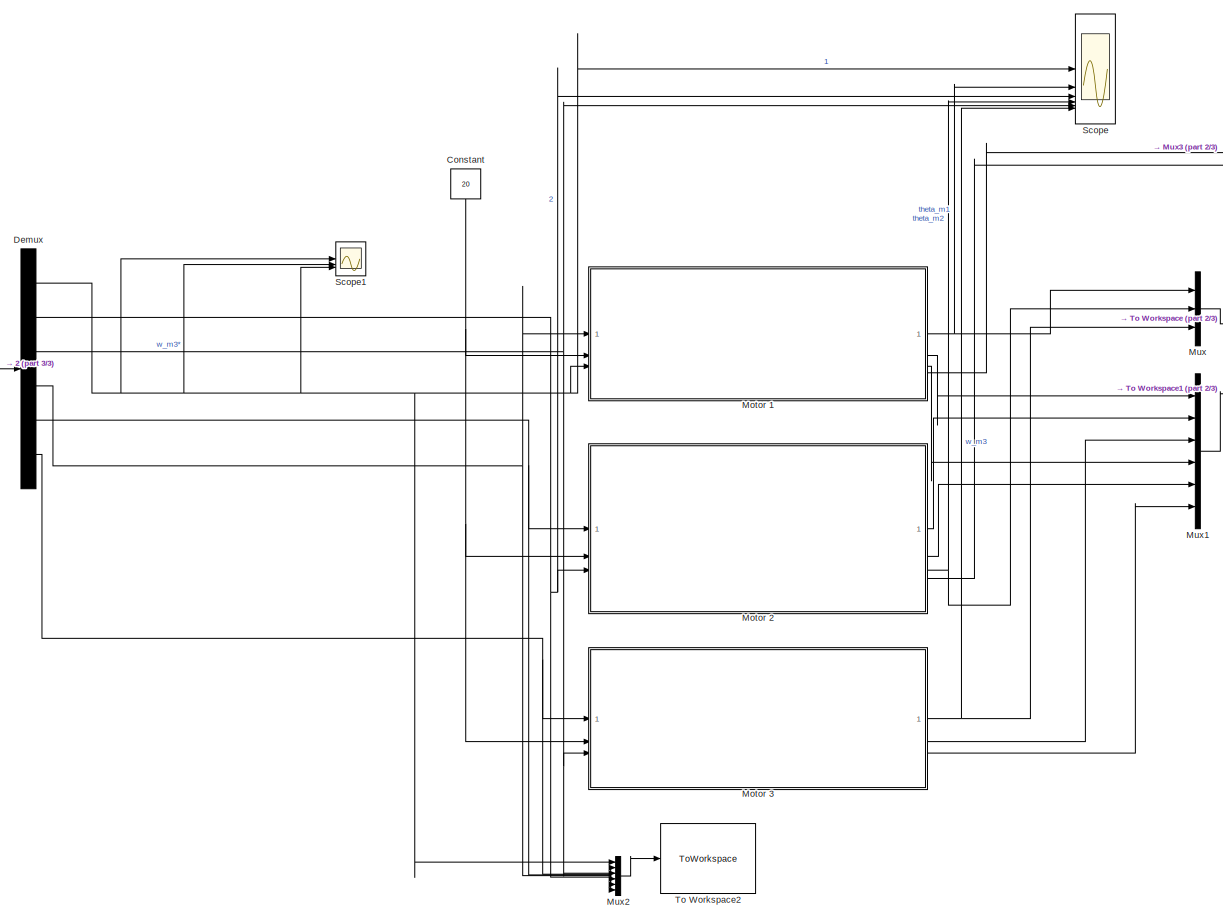
[diagram: root canvas - part 1/3, most of the canvas]
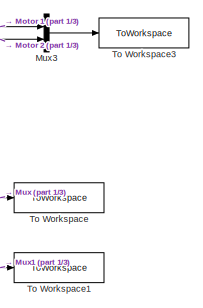
[diagram: root canvas - part 2/3, top right region]
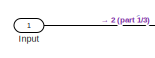
[diagram: root canvas - part 3/3, middle left region]
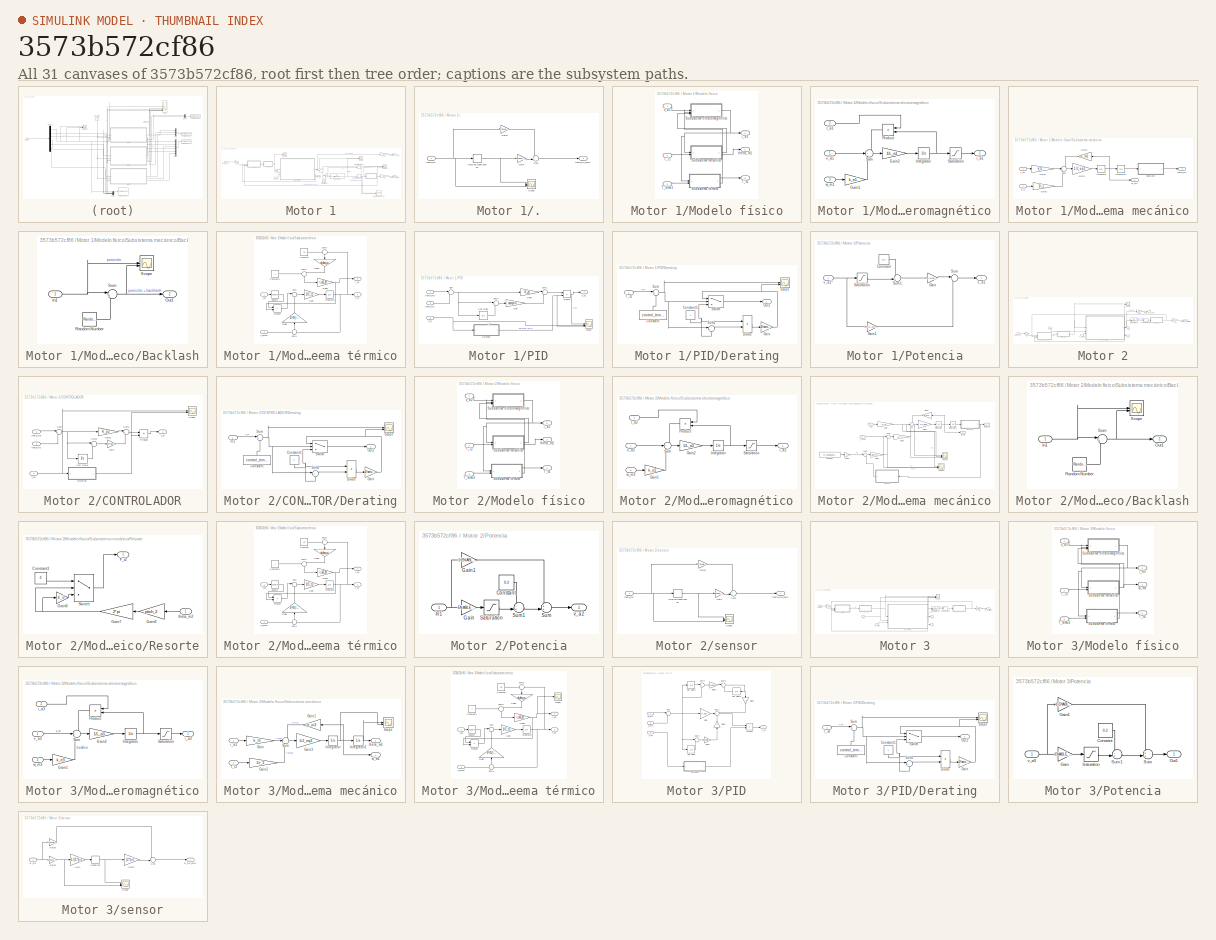
[diagram: thumbnail index - all 31 canvases of the model, root first then tree order]
MODEL slx_3573b572cf86
KIND model
CONFIG AbsTol = auto
CONFIG EnableMultiTasking = off
CONFIG FixedStep = auto
CONFIG MaxStep = sim_max_step
CONFIG MinStep = auto
CONFIG RelTol = 1e-3
CONFIG SampleTimeConstraint = Unconstrained
CONFIG SolverName = ode15s
CONFIG StartTime = 0.0
CONFIG StopTime = sim_end_time
BLOCK [Constant] Constant
  NameLocation = left
  Value = 20
BLOCK [Demux] Demux
  Outputs = 6
BLOCK [Inport] Input
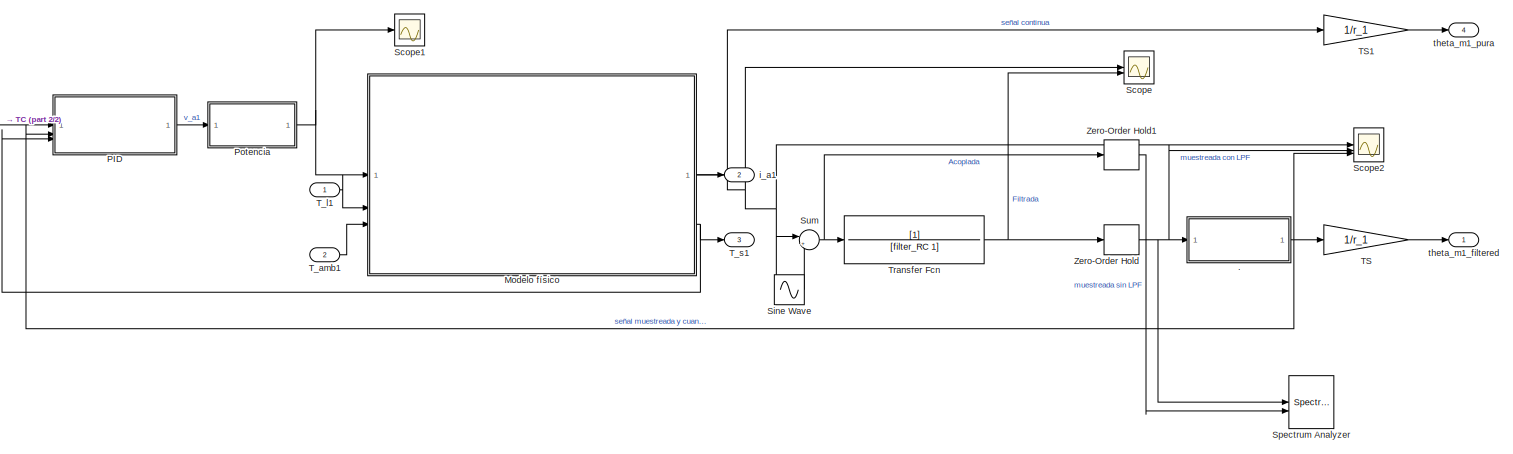
[diagram: Motor 1 - part 1/2, most of the canvas]
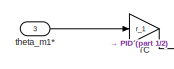
[diagram: Motor 1 - part 2/2, top left region]
BLOCK [SubSystem] Motor 1
BLOCK [SubSystem] Motor 1/.
BLOCK [Gain] Motor 1/./Gain
  Gain = ENABLE_SENSORS
BLOCK [Gain] Motor 1/./Gain1
  Gain = 1-ENABLE_SENSORS
BLOCK [Scope] Motor 1/./Scope
  Floating = off
  NumInputPorts = 2
  ScopeSpecificationString = Simulink.scopes.TimeScopeBlockCfg('CurrentConfiguration', extmgr.ConfigurationSet(extmgr.Configuration('Core','General UI',true),extmgr.Configuration('Core','Source UI',true),extmgr.Configuration('Sources','WiredSimulink',true,'DataLoggingVariableName','ScopeData1'),extmgr.Configuration('Visuals','Time Domain',true,'SerializedDisplays',{struct('MinYLimReal','0.01465','MaxYLimReal','0.02139','YLabe...<+1483ch>
BLOCK [Sum] Motor 1/./Sum
  Inputs = ++|
BLOCK [Quantizer] Motor 1/./ruido de cuantización
  QuantizationInterval = 360/enc_ppr_1*(pi/180)
BLOCK [Inport] Motor 1/./theta_m1
BLOCK [Outport] Motor 1/./theta_m1_noisy
BLOCK [SubSystem] Motor 1/Modelo físico
BLOCK [SubSystem] Motor 1/Modelo físico/Subsistema electromagnético
BLOCK [Gain] Motor 1/Modelo físico/Subsistema electromagnético/Gain1
  Gain = k_e1
BLOCK [Gain] Motor 1/Modelo físico/Subsistema electromagnético/Gain2
  Gain = 1/L_a1
BLOCK [Integrator] Motor 1/Modelo físico/Subsistema electromagnético/Integrator
BLOCK [Product] Motor 1/Modelo físico/Subsistema electromagnético/Product
  NameLocation = top
BLOCK [Saturate] Motor 1/Modelo físico/Subsistema electromagnético/Saturation
  LowerLimit = -max_current
  UpperLimit = max_current
BLOCK [Sum] Motor 1/Modelo físico/Subsistema electromagnético/Sum
  Inputs = -+-
  OutMax = [1]
  OutMin = [1]
BLOCK [Outport] Motor 1/Modelo físico/Subsistema electromagnético/i_a1
BLOCK [Inport] Motor 1/Modelo físico/Subsistema electromagnético/r_a1
  Port = 2
BLOCK [Inport] Motor 1/Modelo físico/Subsistema electromagnético/v_a1
BLOCK [Inport] Motor 1/Modelo físico/Subsistema electromagnético/w_m1
  Port = 3
BLOCK [SubSystem] Motor 1/Modelo físico/Subsistema mecánico
BLOCK [SubSystem] Motor 1/Modelo físico/Subsistema mecánico/Backlash
BLOCK [Inport] Motor 1/Modelo físico/Subsistema mecánico/Backlash/In1
BLOCK [Outport] Motor 1/Modelo físico/Subsistema mecánico/Backlash/Out1
BLOCK [RandomNumber] Motor 1/Modelo físico/Subsistema mecánico/Backlash/Random Number
  SampleTime = 0.1
  Variance = sigma2_backlash
BLOCK [Scope] Motor 1/Modelo físico/Subsistema mecánico/Backlash/Scope
  Floating = off
  NumInputPorts = 2
  ScopeSpecificationString = Simulink.scopes.TimeScopeBlockCfg('CurrentConfiguration', extmgr.ConfigurationSet(extmgr.Configuration('Core','General UI',true),extmgr.Configuration('Core','Source UI',true),extmgr.Configuration('Sources','WiredSimulink',true,'DataLoggingVariableName','ScopeData1'),extmgr.Configuration('Visuals','Time Domain',true,'SerializedDisplays',{struct('MinYLimReal','72.91585','MaxYLimReal','74.02403','YLa...<+1466ch>
BLOCK [Sum] Motor 1/Modelo físico/Subsistema mecánico/Backlash/Sum
  Inputs = |++
BLOCK [Gain] Motor 1/Modelo físico/Subsistema mecánico/Gain1
  Gain = b_m1
  NameLocation = top
BLOCK [Gain] Motor 1/Modelo físico/Subsistema mecánico/Gain2
  Gain = 1/r_1
BLOCK [Gain] Motor 1/Modelo físico/Subsistema mecánico/Gain3
  Gain = 1/J_eq1
BLOCK [Gain] Motor 1/Modelo físico/Subsistema mecánico/Gain4
  Gain = k_t1
BLOCK [Integrator] Motor 1/Modelo físico/Subsistema mecánico/Integrator
BLOCK [Integrator] Motor 1/Modelo físico/Subsistema mecánico/Integrator1
  InitialCondition = theta_m0_1
BLOCK [Sum] Motor 1/Modelo físico/Subsistema mecánico/Sum
  Inputs = -+-
BLOCK [Inport] Motor 1/Modelo físico/Subsistema mecánico/T_l1
  Port = 2
BLOCK [Inport] Motor 1/Modelo físico/Subsistema mecánico/i_a1
BLOCK [Outport] Motor 1/Modelo físico/Subsistema mecánico/theta_m1
  Port = 2
BLOCK [Outport] Motor 1/Modelo físico/Subsistema mecánico/w_m1
BLOCK [SubSystem] Motor 1/Modelo físico/Subsistema térmico
BLOCK [Constant] Motor 1/Modelo físico/Subsistema térmico/Constant
  Value = 20
BLOCK [Constant] Motor 1/Modelo físico/Subsistema térmico/Constant1
BLOCK [Gain] Motor 1/Modelo físico/Subsistema térmico/Gain
  Gain = 1/C_t1
BLOCK [Gain] Motor 1/Modelo físico/Subsistema térmico/Gain1
  Gain = 1/res_term_1
  NameLocation = right
BLOCK [Gain] Motor 1/Modelo físico/Subsistema térmico/Gain2
  Gain = alpha_cu
  NameLocation = left
BLOCK [Gain] Motor 1/Modelo físico/Subsistema térmico/Gain3
  Gain = r_a1_20
BLOCK [Integrator] Motor 1/Modelo físico/Subsistema térmico/Integrator
  InitialCondition = T_s0_1
BLOCK [Product] Motor 1/Modelo físico/Subsistema térmico/Product
BLOCK [Math] Motor 1/Modelo físico/Subsistema térmico/Square
  Operator = square
BLOCK [Sum] Motor 1/Modelo físico/Subsistema térmico/Sum
  Inputs = |+-
BLOCK [Sum] Motor 1/Modelo físico/Subsistema térmico/Sum1
  Inputs = -|+
  NameLocation = right
BLOCK [Sum] Motor 1/Modelo físico/Subsistema térmico/Sum2
  Inputs = -|+
  NameLocation = left
BLOCK [Sum] Motor 1/Modelo físico/Subsistema térmico/Sum3
  Inputs = +|+
  NameLocation = left
BLOCK [Inport] Motor 1/Modelo físico/Subsistema térmico/T_amb1
  Port = 2
BLOCK [Outport] Motor 1/Modelo físico/Subsistema térmico/T_s1
BLOCK [Inport] Motor 1/Modelo físico/Subsistema térmico/i_a1
BLOCK [Outport] Motor 1/Modelo físico/Subsistema térmico/r_a1
  Port = 2
BLOCK [Inport] Motor 1/Modelo físico/T_amb1
  Port = 3
BLOCK [Inport] Motor 1/Modelo físico/T_l1
  Port = 2
BLOCK [Outport] Motor 1/Modelo físico/T_s1
  Port = 3
  PortDimensions = 1
BLOCK [Outport] Motor 1/Modelo físico/i_a1
  Port = 2
  PortDimensions = 1
BLOCK [Outport] Motor 1/Modelo físico/theta_m1
BLOCK [Inport] Motor 1/Modelo físico/v_a1
BLOCK [SubSystem] Motor 1/PID
BLOCK [SubSystem] Motor 1/PID/Derating
BLOCK [Constant] Motor 1/PID/Derating/Constant
  NameLocation = right
  Value = control_temp_s
BLOCK [Constant] Motor 1/PID/Derating/Constant1
  NameLocation = left
BLOCK [Product] Motor 1/PID/Derating/Divide
  Inputs = */
BLOCK [Gain] Motor 1/PID/Derating/Gain
  Gain = 1/factor_derating
BLOCK [Outport] Motor 1/PID/Derating/Out1
BLOCK [Scope] Motor 1/PID/Derating/Scope
  Floating = off
  NumInputPorts = 2
  ScopeSpecificationString = Simulink.scopes.TimeScopeBlockCfg('CurrentConfiguration', extmgr.ConfigurationSet(extmgr.Configuration('Core','General UI',true),extmgr.Configuration('Core','Source UI',true),extmgr.Configuration('Sources','WiredSimulink',true,'DataLoggingVariableName','ScopeData3'),extmgr.Configuration('Visuals','Time Domain',true,'SerializedDisplays',{struct('MinYLimReal','-655.62277','MaxYLimReal','259.30187','...<+1425ch>  <repeated x3 — deduplicated; at blocks: Scope>
BLOCK [Sum] Motor 1/PID/Derating/Sum
  Inputs = |+-
BLOCK [Sum] Motor 1/PID/Derating/Sum1
  Inputs = |++
BLOCK [Switch] Motor 1/PID/Derating/Switch
  Criteria = u2 > Threshold
  InputSameDT = off
  SaturateOnIntegerOverflow = off
BLOCK [Inport] Motor 1/PID/Derating/T_s1
BLOCK [Gain] Motor 1/PID/Gain
  Gain = sampling_frequency*K_d1
BLOCK [Gain] Motor 1/PID/Gain1
  Gain = K_p1
BLOCK [Product] Motor 1/PID/Product
BLOCK [Scope] Motor 1/PID/Scope
  Floating = off
  NumInputPorts = 3
  ScopeSpecificationString = Simulink.scopes.TimeScopeBlockCfg('CurrentConfiguration', extmgr.ConfigurationSet(extmgr.Configuration('Core','General UI',true),extmgr.Configuration('Core','Source UI',true),extmgr.Configuration('Sources','WiredSimulink',true,'DataLoggingVariableName','ScopeData1'),extmgr.Configuration('Visuals','Time Domain',true,'SerializedDisplays',{struct('MinYLimReal','-0.57343','MaxYLimReal','3.25388','YLab...<+3078ch>
BLOCK [Sum] Motor 1/PID/Sum
  Inputs = |+-
BLOCK [Sum] Motor 1/PID/Sum1
  Inputs = |++
BLOCK [Sum] Motor 1/PID/Sum2
  Inputs = |+-
BLOCK [Inport] Motor 1/PID/T_s1
  Port = 3
BLOCK [UnitDelay] Motor 1/PID/Unit Delay
  HasFrameUpgradeWarning = on
  SampleTime = 1/sampling_frequency
BLOCK [Inport] Motor 1/PID/theta_m1
  Port = 2
BLOCK [Inport] Motor 1/PID/theta_m1*
BLOCK [Outport] Motor 1/PID/v_a1
BLOCK [SubSystem] Motor 1/Potencia
BLOCK [Constant] Motor 1/Potencia/Constant
  Value = 0.2
BLOCK [Gain] Motor 1/Potencia/Gain
  Gain = ENABLE_SATURATIONS
BLOCK [Gain] Motor 1/Potencia/Gain1
  Gain = 1-ENABLE_SATURATIONS
BLOCK [Saturate] Motor 1/Potencia/Saturation
  LowerLimit = -voltage_1
  UpperLimit = +voltage_1
BLOCK [Sum] Motor 1/Potencia/Sum
  Inputs = |++
BLOCK [Sum] Motor 1/Potencia/Sum1
  Inputs = -+|
BLOCK [Outport] Motor 1/Potencia/v_a1
BLOCK [Inport] Motor 1/Potencia/v_a1*
BLOCK [Scope] Motor 1/Scope
  Floating = off
  NumInputPorts = 2
  ScopeSpecificationString = Simulink.scopes.TimeScopeBlockCfg('CurrentConfiguration', extmgr.ConfigurationSet(extmgr.Configuration('Core','General UI',true),extmgr.Configuration('Core','Source UI',true),extmgr.Configuration('Sources','WiredSimulink',true,'DataLoggingVariableName','ScopeData1'),extmgr.Configuration('Visuals','Time Domain',true,'SerializedDisplays',{struct('MinYLimReal','-0.31395','MaxYLimReal','0.80714','YLab...<+1488ch>
BLOCK [Scope] Motor 1/Scope1
  Floating = off
  NumInputPorts = 1
  ScopeSpecificationString = Simulink.scopes.TimeScopeBlockCfg('CurrentConfiguration', extmgr.ConfigurationSet(extmgr.Configuration('Core','General UI',true),extmgr.Configuration('Core','Source UI',true),extmgr.Configuration('Sources','WiredSimulink',true,'DataLoggingVariableName','ScopeData1'),extmgr.Configuration('Visuals','Time Domain',true,'SerializedDisplays',{struct('MinYLimReal','-247.85914','MaxYLimReal','30.73223','Y...<+1434ch>
BLOCK [Scope] Motor 1/Scope2
  Floating = off
  NumInputPorts = 3
  ScopeSpecificationString = Simulink.scopes.TimeScopeBlockCfg('CurrentConfiguration', extmgr.ConfigurationSet(extmgr.Configuration('Core','General UI',true),extmgr.Configuration('Core','Source UI',true),extmgr.Configuration('Sources','WiredSimulink',true,'DataLoggingVariableName','ScopeData1'),extmgr.Configuration('Visuals','Time Domain',true,'SerializedDisplays',{struct('MinYLimReal','-19.77509','MaxYLimReal','176.56457','Y...<+1533ch>
BLOCK [Sin] Motor 1/Sine Wave
  Amplitude = 360/enc_ppr_1/5
  Frequency = 410*2*pi
  SampleTime = 0
BLOCK [SpectrumAnalyzer] Motor 1/Spectrum Analyzer
  DefaultConfigurationName = spbscopes.SpectrumAnalyzerBlockCfg
  FrequencyInputRBWFromPort = 0
  FrequencyInputRBWPort = 0
  FrequencyVectorFromPort = 0
  FrequencyVectorPort = 0
  GraphicalSettings = {"GraphicalSettings":{"Style":{"BackgroundColor":[0.1568627450980392,0.1568627450980392,0.1568627450980392],"AxesColor":[0,0,0],"LabelsColor":[0.6862745098039216,0.6862745098039216,0.6862745098039216],"PreserveColors":false,"Visible":[true,true],"LineStyle":["-","-"],"LineColor":[[1,1,0.06666666666666667],[0.07450980392156863,0.6235294117647059,1]],"LineWidth":[1.5,1.5],"Marker":["none","none"],"F...<+894ch>
  IsFrequencyInputMode = 0
  NumInputPorts = 2
  ScopeFrameLocation = window
  ScopeSpecificationString = spbscopes.SpectrumAnalyzerBlockCfg('CurrentConfiguration', extmgr.ConfigurationSet(extmgr.Configuration('Core','General UI',true),extmgr.Configuration('Core','Source UI',true),extmgr.Configuration('Sources','WiredSimulink',true),extmgr.Configuration('Visuals','Spectrum',true,'AxesProperties',struct('Color',{[0 0 0],[0 0 0]},'XColor',{[0.686274509803922 0.686274509803922 0.686274509803922],[0.68627...<+1392ch>
  ShowLegend = on
  Span = 40
  StartFrequency = -20
  StopFrequency = 20
  WasSavedAsWebScope = on
  WindowPosition = [454.000000,230.000000,800.000000,500.000000,]
  YLimits = [-179.77749236,-15.33420059]
BLOCK [Sum] Motor 1/Sum
  Inputs = |++
BLOCK [Gain] Motor 1/TC
  Gain = r_1
BLOCK [Gain] Motor 1/TS
  Gain = 1/r_1
BLOCK [Gain] Motor 1/TS1
  Gain = 1/r_1
BLOCK [Inport] Motor 1/T_amb1
  Port = 2
BLOCK [Inport] Motor 1/T_l1
BLOCK [Outport] Motor 1/T_s1
  Port = 3
  PortDimensions = 1
BLOCK [TransferFcn] Motor 1/Transfer Fcn
  Denominator = [filter_RC 1]
BLOCK [ZeroOrderHold] Motor 1/Zero-Order Hold
  SampleTime = 1/sampling_frequency
BLOCK [ZeroOrderHold] Motor 1/Zero-Order Hold1
  SampleTime = 1/sampling_frequency
BLOCK [Outport] Motor 1/i_a1
  Port = 2
  PortDimensions = 1
BLOCK [Inport] Motor 1/theta_m1*
  Port = 3
BLOCK [Outport] Motor 1/theta_m1_filtered
  PortDimensions = 1
BLOCK [Outport] Motor 1/theta_m1_pura
  Port = 4
BLOCK [SubSystem] Motor 2
BLOCK [SubSystem] Motor 2/CONTROLADOR
BLOCK [SubSystem] Motor 2/CONTROLADOR/Derating
BLOCK [Constant] Motor 2/CONTROLADOR/Derating/Constant
  NameLocation = right
  Value = control_temp_s
BLOCK [Constant] Motor 2/CONTROLADOR/Derating/Constant1
  NameLocation = left
BLOCK [Product] Motor 2/CONTROLADOR/Derating/Divide
  Inputs = */
BLOCK [Gain] Motor 2/CONTROLADOR/Derating/Gain
  Gain = 1/factor_derating
BLOCK [Inport] Motor 2/CONTROLADOR/Derating/In1
BLOCK [Outport] Motor 2/CONTROLADOR/Derating/Out1
BLOCK [Scope] Motor 2/CONTROLADOR/Derating/Scope
  Floating = off
  NumInputPorts = 2
BLOCK [Sum] Motor 2/CONTROLADOR/Derating/Sum
  Inputs = |+-
BLOCK [Sum] Motor 2/CONTROLADOR/Derating/Sum1
  Inputs = |++
BLOCK [Switch] Motor 2/CONTROLADOR/Derating/Switch
  Criteria = u2 > Threshold
  InputSameDT = off
  SaturateOnIntegerOverflow = off
BLOCK [Gain] Motor 2/CONTROLADOR/Gain
  Gain = sampling_frequency*K_d2
BLOCK [Gain] Motor 2/CONTROLADOR/Gain1
  Gain = K_p2
BLOCK [Product] Motor 2/CONTROLADOR/Product
BLOCK [Scope] Motor 2/CONTROLADOR/Scope
  Floating = off
  NumInputPorts = 2
  ScopeSpecificationString = Simulink.scopes.TimeScopeBlockCfg('CurrentConfiguration', extmgr.ConfigurationSet(extmgr.Configuration('Core','General UI',true),extmgr.Configuration('Core','Source UI',true),extmgr.Configuration('Sources','WiredSimulink',true,'DataLoggingVariableName','ScopeData2'),extmgr.Configuration('Visuals','Time Domain',true,'SerializedDisplays',{struct('MinYLimReal','-2.80525','MaxYLimReal','25.24727','YLa...<+1422ch>
BLOCK [Sum] Motor 2/CONTROLADOR/Sum
  Inputs = |+-
BLOCK [Sum] Motor 2/CONTROLADOR/Sum1
  Inputs = |++
BLOCK [Sum] Motor 2/CONTROLADOR/Sum2
  Inputs = |+-
BLOCK [Inport] Motor 2/CONTROLADOR/T_s2
  Port = 3
BLOCK [UnitDelay] Motor 2/CONTROLADOR/Unit Delay
  HasFrameUpgradeWarning = on
  SampleTime = 1/sampling_frequency
BLOCK [Inport] Motor 2/CONTROLADOR/theta_m2
  Port = 2
BLOCK [Inport] Motor 2/CONTROLADOR/theta_m2*
BLOCK [Outport] Motor 2/CONTROLADOR/v_a*
BLOCK [SubSystem] Motor 2/Modelo físico
BLOCK [SubSystem] Motor 2/Modelo físico/Subsistema electromagnético
BLOCK [Gain] Motor 2/Modelo físico/Subsistema electromagnético/Gain1
  Gain = k_e2
BLOCK [Gain] Motor 2/Modelo físico/Subsistema electromagnético/Gain2
  Gain = 1/L_a2
BLOCK [Integrator] Motor 2/Modelo físico/Subsistema electromagnético/Integrator
BLOCK [Product] Motor 2/Modelo físico/Subsistema electromagnético/Product
  NameLocation = top
BLOCK [Saturate] Motor 2/Modelo físico/Subsistema electromagnético/Saturation
  LowerLimit = -max_current
  UpperLimit = max_current
BLOCK [Sum] Motor 2/Modelo físico/Subsistema electromagnético/Sum
  Inputs = -+-
BLOCK [Outport] Motor 2/Modelo físico/Subsistema electromagnético/i_a2
BLOCK [Inport] Motor 2/Modelo físico/Subsistema electromagnético/r_a2
  Port = 2
BLOCK [Inport] Motor 2/Modelo físico/Subsistema electromagnético/v_a2
BLOCK [Inport] Motor 2/Modelo físico/Subsistema electromagnético/w_m2
  Port = 3
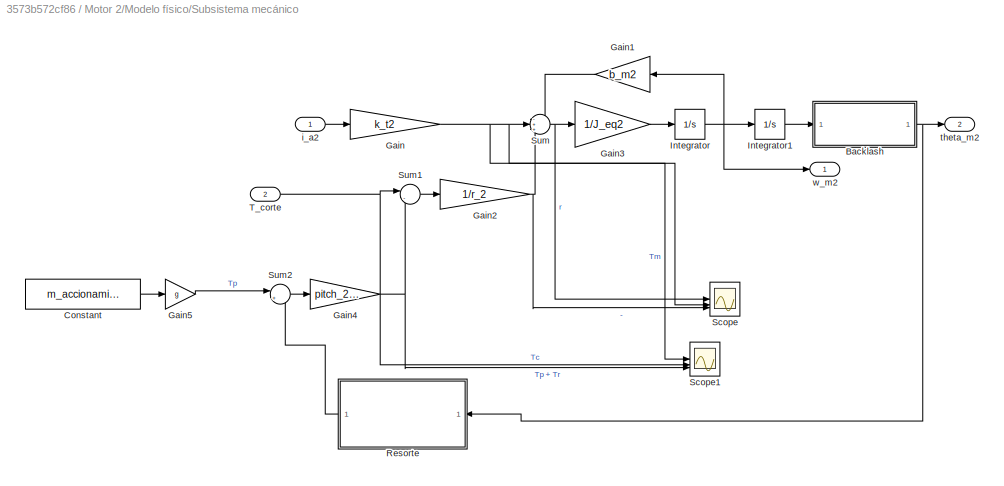
BLOCK [SubSystem] Motor 2/Modelo físico/Subsistema mecánico
BLOCK [SubSystem] Motor 2/Modelo físico/Subsistema mecánico/Backlash
BLOCK [Inport] Motor 2/Modelo físico/Subsistema mecánico/Backlash/In1
BLOCK [Outport] Motor 2/Modelo físico/Subsistema mecánico/Backlash/Out1
BLOCK [RandomNumber] Motor 2/Modelo físico/Subsistema mecánico/Backlash/Random Number
  SampleTime = 0.1
  Variance = sigma2_backlash
BLOCK [Scope] Motor 2/Modelo físico/Subsistema mecánico/Backlash/Scope
  Floating = off
  NumInputPorts = 2
  ScopeSpecificationString = Simulink.scopes.TimeScopeBlockCfg('CurrentConfiguration', extmgr.ConfigurationSet(extmgr.Configuration('Core','General UI',true),extmgr.Configuration('Core','Source UI',true),extmgr.Configuration('Sources','WiredSimulink',true,'DataLoggingVariableName','ScopeData1'),extmgr.Configuration('Visuals','Time Domain',true,'SerializedDisplays',{struct('MinYLimReal','0.29391','MaxYLimReal','0.30078','YLabe...<+1437ch>
BLOCK [Sum] Motor 2/Modelo físico/Subsistema mecánico/Backlash/Sum
  Inputs = |++
BLOCK [Constant] Motor 2/Modelo físico/Subsistema mecánico/Constant
  Value = m_accionamiento_1
BLOCK [Gain] Motor 2/Modelo físico/Subsistema mecánico/Gain
  Gain = k_t2
BLOCK [Gain] Motor 2/Modelo físico/Subsistema mecánico/Gain1
  Gain = b_m2
  NameLocation = top
BLOCK [Gain] Motor 2/Modelo físico/Subsistema mecánico/Gain2
  Gain = 1/r_2
BLOCK [Gain] Motor 2/Modelo físico/Subsistema mecánico/Gain3
  Gain = 1/J_eq2
BLOCK [Gain] Motor 2/Modelo físico/Subsistema mecánico/Gain4
  Gain = pitch_2/2/pi
BLOCK [Gain] Motor 2/Modelo físico/Subsistema mecánico/Gain5
  Gain = g
BLOCK [Integrator] Motor 2/Modelo físico/Subsistema mecánico/Integrator
BLOCK [Integrator] Motor 2/Modelo físico/Subsistema mecánico/Integrator1
  InitialCondition = theta_m0_2
BLOCK [SubSystem] Motor 2/Modelo físico/Subsistema mecánico/Resorte
BLOCK [Constant] Motor 2/Modelo físico/Subsistema mecánico/Resorte/Constant1
  Value = 0
BLOCK [Outport] Motor 2/Modelo físico/Subsistema mecánico/Resorte/F_r2
BLOCK [Gain] Motor 2/Modelo físico/Subsistema mecánico/Resorte/Gain6
  Gain = pitch_2
  NameLocation = top
BLOCK [Gain] Motor 2/Modelo físico/Subsistema mecánico/Resorte/Gain7
  Gain = 2*pi
  NameLocation = top
BLOCK [Gain] Motor 2/Modelo físico/Subsistema mecánico/Resorte/Gain8
  Gain = -K_r2
BLOCK [Switch] Motor 2/Modelo físico/Subsistema mecánico/Resorte/Switch
  Criteria = u2 > Threshold
  InputSameDT = off
  SaturateOnIntegerOverflow = off
BLOCK [Inport] Motor 2/Modelo físico/Subsistema mecánico/Resorte/theta_m2
  NameLocation = top
BLOCK [Scope] Motor 2/Modelo físico/Subsistema mecánico/Scope
  Floating = off
  NumInputPorts = 3
  ScopeSpecificationString = Simulink.scopes.TimeScopeBlockCfg('CurrentConfiguration', extmgr.ConfigurationSet(extmgr.Configuration('Core','General UI',true),extmgr.Configuration('Core','Source UI',true),extmgr.Configuration('Sources','WiredSimulink',true,'DataLoggingVariableName','ScopeData1'),extmgr.Configuration('Visuals','Time Domain',true,'SerializedDisplays',{struct('MinYLimReal','-4.66399','MaxYLimReal','4.67094','YLab...<+1437ch>
BLOCK [Scope] Motor 2/Modelo físico/Subsistema mecánico/Scope1
  Floating = off
  NumInputPorts = 3
  ScopeSpecificationString = Simulink.scopes.TimeScopeBlockCfg('CurrentConfiguration', extmgr.ConfigurationSet(extmgr.Configuration('Core','General UI',true),extmgr.Configuration('Core','Source UI',true),extmgr.Configuration('Sources','WiredSimulink',true,'DataLoggingVariableName','ScopeData2'),extmgr.Configuration('Visuals','Time Domain',true,'SerializedDisplays',{struct('MinYLimReal','-1.12768','MaxYLimReal','1.03347','YLab...<+1539ch>
BLOCK [Sum] Motor 2/Modelo físico/Subsistema mecánico/Sum
  Inputs = -++
BLOCK [Sum] Motor 2/Modelo físico/Subsistema mecánico/Sum1
  Inputs = |-+
BLOCK [Sum] Motor 2/Modelo físico/Subsistema mecánico/Sum2
  Inputs = |++
BLOCK [Inport] Motor 2/Modelo físico/Subsistema mecánico/T_corte
  Port = 2
BLOCK [Inport] Motor 2/Modelo físico/Subsistema mecánico/i_a2
BLOCK [Outport] Motor 2/Modelo físico/Subsistema mecánico/theta_m2
  Port = 2
BLOCK [Outport] Motor 2/Modelo físico/Subsistema mecánico/w_m2
BLOCK [SubSystem] Motor 2/Modelo físico/Subsistema térmico
BLOCK [Constant] Motor 2/Modelo físico/Subsistema térmico/Constant
  Value = 20
BLOCK [Constant] Motor 2/Modelo físico/Subsistema térmico/Constant1
BLOCK [Gain] Motor 2/Modelo físico/Subsistema térmico/Gain
  Gain = 1/C_t2
BLOCK [Gain] Motor 2/Modelo físico/Subsistema térmico/Gain1
  Gain = 1/res_term_2
  NameLocation = right
BLOCK [Gain] Motor 2/Modelo físico/Subsistema térmico/Gain2
  Gain = alpha_cu
  NameLocation = left
BLOCK [Gain] Motor 2/Modelo físico/Subsistema térmico/Gain3
  Gain = r_a2_20
BLOCK [Integrator] Motor 2/Modelo físico/Subsistema térmico/Integrator
  InitialCondition = T_s0_2
BLOCK [Product] Motor 2/Modelo físico/Subsistema térmico/Product
BLOCK [Math] Motor 2/Modelo físico/Subsistema térmico/Square
  Operator = square
BLOCK [Sum] Motor 2/Modelo físico/Subsistema térmico/Sum
  Inputs = |+-
BLOCK [Sum] Motor 2/Modelo físico/Subsistema térmico/Sum1
  Inputs = -|+
  NameLocation = right
BLOCK [Sum] Motor 2/Modelo físico/Subsistema térmico/Sum2
  Inputs = -|+
  NameLocation = left
BLOCK [Sum] Motor 2/Modelo físico/Subsistema térmico/Sum3
  Inputs = +|+
  NameLocation = left
BLOCK [Inport] Motor 2/Modelo físico/Subsistema térmico/T_amb2
  Port = 2
BLOCK [Outport] Motor 2/Modelo físico/Subsistema térmico/T_s2
  PortDimensions = 1
BLOCK [Inport] Motor 2/Modelo físico/Subsistema térmico/i_a2
BLOCK [Outport] Motor 2/Modelo físico/Subsistema térmico/r_a2
  Port = 2
BLOCK [Inport] Motor 2/Modelo físico/T_amb2
  Port = 3
BLOCK [Inport] Motor 2/Modelo físico/T_l2
  Port = 2
BLOCK [Outport] Motor 2/Modelo físico/T_s2
  Port = 3
  PortDimensions = 1
BLOCK [Outport] Motor 2/Modelo físico/i_a2
  Port = 2
  PortDimensions = 1
BLOCK [Outport] Motor 2/Modelo físico/theta_m2
BLOCK [Inport] Motor 2/Modelo físico/v_a2
BLOCK [SubSystem] Motor 2/Potencia
BLOCK [Constant] Motor 2/Potencia/Constant
  Value = 0.2
BLOCK [Gain] Motor 2/Potencia/Gain
  Gain = ENABLE_SATURATIONS
BLOCK [Gain] Motor 2/Potencia/Gain1
  Gain = 1-ENABLE_SATURATIONS
BLOCK [Inport] Motor 2/Potencia/In1
BLOCK [Saturate] Motor 2/Potencia/Saturation
  LowerLimit = -voltage_2
  UpperLimit = +voltage_2
BLOCK [Sum] Motor 2/Potencia/Sum
  Inputs = ++|
BLOCK [Sum] Motor 2/Potencia/Sum1
  Inputs = -+|
BLOCK [Outport] Motor 2/Potencia/v_a2
BLOCK [Scope] Motor 2/Scope
  Floating = off
  NumInputPorts = 2
  ScopeSpecificationString = Simulink.scopes.TimeScopeBlockCfg('CurrentConfiguration', extmgr.ConfigurationSet(extmgr.Configuration('Core','General UI',true),extmgr.Configuration('Core','Source UI',true),extmgr.Configuration('Sources','WiredSimulink',true,'DataLoggingVariableName','ScopeData1'),extmgr.Configuration('Visuals','Time Domain',true,'SerializedDisplays',{struct('MinYLimReal','-41.66241','MaxYLimReal','57.96249','YL...<+2093ch>
BLOCK [Gain] Motor 2/TC
  Gain = r_2
BLOCK [Gain] Motor 2/TS
  Gain = 1/r_2
BLOCK [Gain] Motor 2/TS1
  Gain = 1/r_2
BLOCK [Inport] Motor 2/T_amb2
  Port = 2
BLOCK [Inport] Motor 2/T_l2
BLOCK [Outport] Motor 2/T_s2
  Port = 2
  PortDimensions = 1
BLOCK [TransferFcn] Motor 2/Transfer Fcn
  Denominator = [filter_RC 1]
BLOCK [ZeroOrderHold] Motor 2/Zero-Order Hold
  SampleTime = 1/sampling_frequency
BLOCK [Outport] Motor 2/i_a2
  PortDimensions = 1
BLOCK [SubSystem] Motor 2/sensor
BLOCK [Gain] Motor 2/sensor/Gain
  Gain = ENABLE_SENSORS
BLOCK [Gain] Motor 2/sensor/Gain1
  Gain = 1-ENABLE_SENSORS
BLOCK [Scope] Motor 2/sensor/Scope
  Floating = off
  NumInputPorts = 2
  ScopeSpecificationString = Simulink.scopes.TimeScopeBlockCfg('CurrentConfiguration', extmgr.ConfigurationSet(extmgr.Configuration('Core','General UI',true),extmgr.Configuration('Core','Source UI',true),extmgr.Configuration('Sources','WiredSimulink',true,'DataLoggingVariableName','ScopeData1'),extmgr.Configuration('Visuals','Time Domain',true,'SerializedDisplays',{struct('MinYLimReal','-10.32566','MaxYLimReal','92.0571','YLa...<+1483ch>
BLOCK [Sum] Motor 2/sensor/Sum
  Inputs = ++|
BLOCK [Quantizer] Motor 2/sensor/ruido de cuantización
  QuantizationInterval = 360/enc_ppr_2*(pi/180)
BLOCK [Outport] Motor 2/sensor/therta_m2_noisy
BLOCK [Inport] Motor 2/sensor/theta_m2
BLOCK [Inport] Motor 2/theta_m2*
  Port = 3
BLOCK [Outport] Motor 2/theta_m2_filtered
  Port = 3
  PortDimensions = 1
BLOCK [Outport] Motor 2/theta_m2_pura
  Port = 4
BLOCK [SubSystem] Motor 3
BLOCK [SubSystem] Motor 3/Modelo físico
BLOCK [SubSystem] Motor 3/Modelo físico/Subsistema electromagnético
BLOCK [Gain] Motor 3/Modelo físico/Subsistema electromagnético/Gain1
  Gain = k_e3
BLOCK [Gain] Motor 3/Modelo físico/Subsistema electromagnético/Gain2
  Gain = 1/L_a3
BLOCK [Integrator] Motor 3/Modelo físico/Subsistema electromagnético/Integrator
BLOCK [Product] Motor 3/Modelo físico/Subsistema electromagnético/Product
  NameLocation = top
BLOCK [Saturate] Motor 3/Modelo físico/Subsistema electromagnético/Saturation
  LowerLimit = -max_current_3
  UpperLimit = max_current_3
BLOCK [Sum] Motor 3/Modelo físico/Subsistema electromagnético/Sum
  Inputs = -+-
BLOCK [Outport] Motor 3/Modelo físico/Subsistema electromagnético/i_a3
  PortDimensions = 1
BLOCK [Inport] Motor 3/Modelo físico/Subsistema electromagnético/r_a3
  Port = 2
BLOCK [Inport] Motor 3/Modelo físico/Subsistema electromagnético/v_a3
BLOCK [Inport] Motor 3/Modelo físico/Subsistema electromagnético/w_m3
  Port = 3
BLOCK [SubSystem] Motor 3/Modelo físico/Subsistema mecánico
BLOCK [Gain] Motor 3/Modelo físico/Subsistema mecánico/Gain
  Gain = k_t3
BLOCK [Gain] Motor 3/Modelo físico/Subsistema mecánico/Gain1
  Gain = b_m3
  NameLocation = top
BLOCK [Gain] Motor 3/Modelo físico/Subsistema mecánico/Gain2
  Gain = 1/r_3
BLOCK [Gain] Motor 3/Modelo físico/Subsistema mecánico/Gain3
  Gain = 1/J_eq3
BLOCK [Integrator] Motor 3/Modelo físico/Subsistema mecánico/Integrator
BLOCK [Integrator] Motor 3/Modelo físico/Subsistema mecánico/Integrator1
BLOCK [Scope] Motor 3/Modelo físico/Subsistema mecánico/Scope
  Floating = off
  NumInputPorts = 2
  ScopeSpecificationString = Simulink.scopes.TimeScopeBlockCfg('CurrentConfiguration', extmgr.ConfigurationSet(extmgr.Configuration('Core','General UI',true),extmgr.Configuration('Core','Source UI',true),extmgr.Configuration('Sources','WiredSimulink',true,'DataLoggingVariableName','ScopeData2'),extmgr.Configuration('Visuals','Time Domain',true,'SerializedDisplays',{struct('MinYLimReal','-6054.79006','MaxYLimReal','54493.1105'...<+1474ch>
BLOCK [Sum] Motor 3/Modelo físico/Subsistema mecánico/Sum
  Inputs = -+-
BLOCK [Inport] Motor 3/Modelo físico/Subsistema mecánico/T_l3
  Port = 2
BLOCK [Inport] Motor 3/Modelo físico/Subsistema mecánico/i_a3
BLOCK [Outport] Motor 3/Modelo físico/Subsistema mecánico/theta_m3
  Port = 2
  PortDimensions = 1
BLOCK [Outport] Motor 3/Modelo físico/Subsistema mecánico/w_m3
  PortDimensions = 1
BLOCK [SubSystem] Motor 3/Modelo físico/Subsistema térmico
BLOCK [Constant] Motor 3/Modelo físico/Subsistema térmico/Constant
  Value = 20
BLOCK [Constant] Motor 3/Modelo físico/Subsistema térmico/Constant1
BLOCK [Gain] Motor 3/Modelo físico/Subsistema térmico/Gain
  Gain = 1/C_t3
BLOCK [Gain] Motor 3/Modelo físico/Subsistema térmico/Gain1
  Gain = 1/res_term_3
  NameLocation = right
BLOCK [Gain] Motor 3/Modelo físico/Subsistema térmico/Gain2
  Gain = alpha_cu
  NameLocation = left
BLOCK [Gain] Motor 3/Modelo físico/Subsistema térmico/Gain3
  Gain = r_a3_20
BLOCK [Integrator] Motor 3/Modelo físico/Subsistema térmico/Integrator
  InitialCondition = T_s0_3
BLOCK [Product] Motor 3/Modelo físico/Subsistema térmico/Product
BLOCK [Scope] Motor 3/Modelo físico/Subsistema térmico/Scope
  Floating = off
  NumInputPorts = 1
  ScopeSpecificationString = Simulink.scopes.TimeScopeBlockCfg('CurrentConfiguration', extmgr.ConfigurationSet(extmgr.Configuration('Core','General UI',true),extmgr.Configuration('Core','Source UI',true),extmgr.Configuration('Sources','WiredSimulink',true,'DataLoggingVariableName','ScopeData3'),extmgr.Configuration('Visuals','Time Domain',true,'SerializedDisplays',{struct('MinYLimReal','0.01126','MaxYLimReal','0.01297','YLabe...<+1414ch>
BLOCK [Math] Motor 3/Modelo físico/Subsistema térmico/Square
  Operator = square
BLOCK [Sum] Motor 3/Modelo físico/Subsistema térmico/Sum
  Inputs = |+-
BLOCK [Sum] Motor 3/Modelo físico/Subsistema térmico/Sum1
  Inputs = -|+
  NameLocation = right
BLOCK [Sum] Motor 3/Modelo físico/Subsistema térmico/Sum2
  Inputs = -|+
  NameLocation = left
BLOCK [Sum] Motor 3/Modelo físico/Subsistema térmico/Sum3
  Inputs = +|+
  NameLocation = left
BLOCK [Inport] Motor 3/Modelo físico/Subsistema térmico/T_amb3
  Port = 2
BLOCK [Outport] Motor 3/Modelo físico/Subsistema térmico/T_s3
  PortDimensions = 1
BLOCK [Inport] Motor 3/Modelo físico/Subsistema térmico/i_a3
BLOCK [Outport] Motor 3/Modelo físico/Subsistema térmico/r_a3
  Port = 2
  PortDimensions = 1
BLOCK [Inport] Motor 3/Modelo físico/T_amb3
  Port = 3
BLOCK [Inport] Motor 3/Modelo físico/T_l3
  Port = 2
BLOCK [Outport] Motor 3/Modelo físico/T_s3
  Port = 3
  PortDimensions = 1
BLOCK [Outport] Motor 3/Modelo físico/i_a3
  Port = 2
  PortDimensions = 1
BLOCK [Inport] Motor 3/Modelo físico/v_a3
BLOCK [Outport] Motor 3/Modelo físico/w_m3
  PortDimensions = 1
BLOCK [SubSystem] Motor 3/PID
BLOCK [SubSystem] Motor 3/PID/Derating
BLOCK [Constant] Motor 3/PID/Derating/Constant
  NameLocation = right
  Value = control_temp_s
BLOCK [Constant] Motor 3/PID/Derating/Constant1
  NameLocation = left
BLOCK [Product] Motor 3/PID/Derating/Divide
  Inputs = */
BLOCK [Gain] Motor 3/PID/Derating/Gain
  Gain = 1/factor_derating
BLOCK [Outport] Motor 3/PID/Derating/Out1
BLOCK [Scope] Motor 3/PID/Derating/Scope
  Floating = off
  NumInputPorts = 2
BLOCK [Sum] Motor 3/PID/Derating/Sum
  Inputs = |+-
BLOCK [Sum] Motor 3/PID/Derating/Sum1
  Inputs = |++
BLOCK [Switch] Motor 3/PID/Derating/Switch
  Criteria = u2 > Threshold
  InputSameDT = off
  SaturateOnIntegerOverflow = off
BLOCK [Inport] Motor 3/PID/Derating/T_s3
BLOCK [Gain] Motor 3/PID/Gain
  Gain = K_p3
BLOCK [Gain] Motor 3/PID/Gain1
  Gain = sampling_frequency
BLOCK [Gain] Motor 3/PID/Gain2
  Gain = 1/sampling_frequency
BLOCK [Gain] Motor 3/PID/Gain3
  Gain = K_i3
  NameLocation = left
BLOCK [Gain] Motor 3/PID/Gain4
  Gain = K_d3
  NameLocation = right
BLOCK [Product] Motor 3/PID/Product
BLOCK [Sum] Motor 3/PID/Sum
  Inputs = |+-
BLOCK [Sum] Motor 3/PID/Sum1
  Inputs = +++
BLOCK [Sum] Motor 3/PID/Sum2
  Inputs = |+-
BLOCK [Sum] Motor 3/PID/Sum3
  Inputs = |++
BLOCK [Sum] Motor 3/PID/Sum4
  Inputs = |++
BLOCK [Inport] Motor 3/PID/T_s3
  Port = 3
BLOCK [UnitDelay] Motor 3/PID/Unit Delay
  HasFrameUpgradeWarning = on
  SampleTime = 1/sampling_frequency
BLOCK [UnitDelay] Motor 3/PID/Unit Delay1
  HasFrameUpgradeWarning = on
  SampleTime = 1/sampling_frequency
BLOCK [UnitDelay] Motor 3/PID/Unit Delay2
  HasFrameUpgradeWarning = on
  NameLocation = top
  SampleTime = 1/sampling_frequency
BLOCK [Outport] Motor 3/PID/v_a3
BLOCK [Inport] Motor 3/PID/w_m3
  Port = 2
BLOCK [Inport] Motor 3/PID/w_m3*
BLOCK [SubSystem] Motor 3/Potencia
BLOCK [Constant] Motor 3/Potencia/Constant
  Value = 0.2
BLOCK [Gain] Motor 3/Potencia/Gain
  Gain = ENABLE_SATURATIONS
BLOCK [Gain] Motor 3/Potencia/Gain1
  Gain = 1-ENABLE_SATURATIONS
BLOCK [Outport] Motor 3/Potencia/Out1
BLOCK [Saturate] Motor 3/Potencia/Saturation
  LowerLimit = -voltage_3
  UpperLimit = +voltage_3
BLOCK [Sum] Motor 3/Potencia/Sum
  Inputs = ++|
BLOCK [Sum] Motor 3/Potencia/Sum1
  Inputs = -+|
BLOCK [Inport] Motor 3/Potencia/v_a3
BLOCK [Scope] Motor 3/Scope
  Floating = off
  NumInputPorts = 4
  ScopeSpecificationString = Simulink.scopes.TimeScopeBlockCfg('CurrentConfiguration', extmgr.ConfigurationSet(extmgr.Configuration('Core','General UI',true),extmgr.Configuration('Core','Source UI',true),extmgr.Configuration('Sources','WiredSimulink',true,'DataLoggingVariableName','ScopeData1'),extmgr.Configuration('Visuals','Time Domain',true,'SerializedDisplays',{struct('MinYLimReal','49.83149','MaxYLimReal','274.53567','YL...<+3521ch>
BLOCK [Gain] Motor 3/TC
  Gain = r_3
BLOCK [Gain] Motor 3/TS
  Gain = 1/r_3
BLOCK [Inport] Motor 3/T_amb3
  Port = 2
BLOCK [Inport] Motor 3/T_l3
BLOCK [Outport] Motor 3/T_s3
  Port = 3
BLOCK [TransferFcn] Motor 3/Transfer Fcn
  Denominator = [filter_RC 1]
BLOCK [ZeroOrderHold] Motor 3/Zero-Order Hold
  SampleTime = 1/sampling_frequency
BLOCK [Outport] Motor 3/i_a3
  Port = 2
BLOCK [SubSystem] Motor 3/sensor
BLOCK [Gain] Motor 3/sensor/Gain
  Gain = 1/(2*pi)
BLOCK [Gain] Motor 3/sensor/Gain1
  Gain = (2*pi)
BLOCK [Gain] Motor 3/sensor/Gain2
  Gain = ENABLE_SENSORS
BLOCK [Gain] Motor 3/sensor/Gain3
  Gain = 1-ENABLE_SENSORS
BLOCK [Quantizer] Motor 3/sensor/Quantizer
  QuantizationInterval = sensibilidad_sensor_3
BLOCK [Scope] Motor 3/sensor/Scope
  Floating = off
  NumInputPorts = 2
  ScopeSpecificationString = Simulink.scopes.TimeScopeBlockCfg('CurrentConfiguration', extmgr.ConfigurationSet(extmgr.Configuration('Core','General UI',true),extmgr.Configuration('Core','Source UI',true),extmgr.Configuration('Sources','WiredSimulink',true,'DataLoggingVariableName','ScopeData1'),extmgr.Configuration('Visuals','Time Domain',true,'SerializedDisplays',{struct('MinYLimReal','-6.20717','MaxYLimReal','106.1602','YLa...<+1473ch>
BLOCK [Sum] Motor 3/sensor/Sum
  Inputs = ++|
BLOCK [Inport] Motor 3/sensor/w_m3
BLOCK [Outport] Motor 3/sensor/w_m3_noisy
BLOCK [Inport] Motor 3/w_m3*
  Port = 3
BLOCK [Outport] Motor 3/w_m3_filtered
BLOCK [Mux] Mux
  DisplayOption = bar
  Inputs = 3
BLOCK [Mux] Mux1
  DisplayOption = bar
  Inputs = 6
BLOCK [Mux] Mux2
  DisplayOption = bar
  Inputs = 6
BLOCK [Mux] Mux3
  DisplayOption = bar
  Inputs = 2
BLOCK [Scope] Scope
  Floating = off
  NumInputPorts = 6
  ScopeSpecificationString = Simulink.scopes.TimeScopeBlockCfg('CurrentConfiguration', extmgr.ConfigurationSet(extmgr.Configuration('Core','General UI',true),extmgr.Configuration('Core','Source UI',true),extmgr.Configuration('Sources','WiredSimulink',true,'DataLoggingVariableName','ScopeData1'),extmgr.Configuration('Visuals','Time Domain',true,'SerializedDisplays',{struct('MinYLimReal','-0.78539','MaxYLimReal','7.0685','YLabe...<+4880ch>
BLOCK [Scope] Scope1
  Floating = off
  NumInputPorts = 3
  ScopeSpecificationString = Simulink.scopes.TimeScopeBlockCfg('CurrentConfiguration', extmgr.ConfigurationSet(extmgr.Configuration('Core','General UI',true),extmgr.Configuration('Core','Source UI',true),extmgr.Configuration('Sources','WiredSimulink',true,'DataLoggingVariableName','ScopeData2'),extmgr.Configuration('Visuals','Time Domain',true,'SerializedDisplays',{struct('MinYLimReal','-0.78539','MaxYLimReal','7.0685','YLabe...<+1469ch>
BLOCK [ToWorkspace] To Workspace
  FixptAsFi = on
  MaxDataPoints = inf
  SampleTime = -1
  SaveFormat = Timeseries
  VariableName = simoutMedidas
BLOCK [ToWorkspace] To Workspace1
  FixptAsFi = on
  MaxDataPoints = inf
  SampleTime = -1
  SaveFormat = Timeseries
  VariableName = simoutSimuladas
BLOCK [ToWorkspace] To Workspace2
  FixptAsFi = on
  MaxDataPoints = inf
  SampleTime = -1
  SaveFormat = Timeseries
  VariableName = simoutEntradas
BLOCK [ToWorkspace] To Workspace3
  FixptAsFi = on
  MaxDataPoints = inf
  SampleTime = -1
  SaveFormat = Timeseries
  VariableName = simoutLente
NET Constant:1 -> Motor 1:2, Motor 2:2, Motor 3:2
NET Demux:1 -> Motor 1:3, Mux2:1, Scope1:1, Scope1:2, Scope1:3, Scope:1
NET Demux:2 -> Motor 2:3, Mux2:2, Scope:3
NET Demux:3 -> Motor 3:3, Mux2:3, Scope:5
NET Demux:4 -> Motor 1:1, Mux2:4
NET Demux:5 -> Motor 2:1, Mux2:5
NET Demux:6 -> Motor 3:1, Mux2:6
LINE Input:1 -> Demux:1
LINE Motor 1/./Gain1:1 -> Motor 1/./Sum:1
LINE Motor 1/./Gain:1 -> Motor 1/./Sum:2
LINE Motor 1/./Sum:1 -> Motor 1/./theta_m1_noisy:1
NET Motor 1/./ruido de cuantización:1 -> Motor 1/./Gain:1, Motor 1/./Scope:1
NET Motor 1/./theta_m1:1 -> Motor 1/./Gain1:1, Motor 1/./Scope:2, Motor 1/./ruido de cuantización:1
NET Motor 1/.:1 -> Motor 1/PID:2, Motor 1/Scope2:3, Motor 1/TS:1
LINE Motor 1/Modelo físico/Subsistema electromagnético/Gain1:1 -> Motor 1/Modelo físico/Subsistema electromagnético/Sum:3
LINE Motor 1/Modelo físico/Subsistema electromagnético/Gain2:1 -> Motor 1/Modelo físico/Subsistema electromagnético/Integrator:1
NET Motor 1/Modelo físico/Subsistema electromagnético/Integrator:1 -> Motor 1/Modelo físico/Subsistema electromagnético/Product:2, Motor 1/Modelo físico/Subsistema electromagnético/Saturation:1
LINE Motor 1/Modelo físico/Subsistema electromagnético/Product:1 -> Motor 1/Modelo físico/Subsistema electromagnético/Sum:1
LINE Motor 1/Modelo físico/Subsistema electromagnético/Saturation:1 -> Motor 1/Modelo físico/Subsistema electromagnético/i_a1:1
LINE Motor 1/Modelo físico/Subsistema electromagnético/Sum:1 -> Motor 1/Modelo físico/Subsistema electromagnético/Gain2:1
LINE Motor 1/Modelo físico/Subsistema electromagnético/r_a1:1 -> Motor 1/Modelo físico/Subsistema electromagnético/Product:1
LINE Motor 1/Modelo físico/Subsistema electromagnético/v_a1:1 -> Motor 1/Modelo físico/Subsistema electromagnético/Sum:2
LINE Motor 1/Modelo físico/Subsistema electromagnético/w_m1:1 -> Motor 1/Modelo físico/Subsistema electromagnético/Gain1:1
NET Motor 1/Modelo físico/Subsistema electromagnético:1 -> Motor 1/Modelo físico/Subsistema mecánico:1, Motor 1/Modelo físico/Subsistema térmico:1, Motor 1/Modelo físico/i_a1:1
NET Motor 1/Modelo físico/Subsistema mecánico/Backlash/In1:1 -> Motor 1/Modelo físico/Subsistema mecánico/Backlash/Scope:1, Motor 1/Modelo físico/Subsistema mecánico/Backlash/Sum:1
LINE Motor 1/Modelo físico/Subsistema mecánico/Backlash/Random Number:1 -> Motor 1/Modelo físico/Subsistema mecánico/Backlash/Sum:2
NET Motor 1/Modelo físico/Subsistema mecánico/Backlash/Sum:1 -> Motor 1/Modelo físico/Subsistema mecánico/Backlash/Out1:1, Motor 1/Modelo físico/Subsistema mecánico/Backlash/Scope:2
LINE Motor 1/Modelo físico/Subsistema mecánico/Backlash:1 -> Motor 1/Modelo físico/Subsistema mecánico/theta_m1:1
LINE Motor 1/Modelo físico/Subsistema mecánico/Gain1:1 -> Motor 1/Modelo físico/Subsistema mecánico/Sum:1
LINE Motor 1/Modelo físico/Subsistema mecánico/Gain2:1 -> Motor 1/Modelo físico/Subsistema mecánico/Sum:3
LINE Motor 1/Modelo físico/Subsistema mecánico/Gain3:1 -> Motor 1/Modelo físico/Subsistema mecánico/Integrator:1
LINE Motor 1/Modelo físico/Subsistema mecánico/Gain4:1 -> Motor 1/Modelo físico/Subsistema mecánico/Sum:2
LINE Motor 1/Modelo físico/Subsistema mecánico/Integrator1:1 -> Motor 1/Modelo físico/Subsistema mecánico/Backlash:1
NET Motor 1/Modelo físico/Subsistema mecánico/Integrator:1 -> Motor 1/Modelo físico/Subsistema mecánico/Gain1:1, Motor 1/Modelo físico/Subsistema mecánico/Integrator1:1, Motor 1/Modelo físico/Subsistema mecánico/w_m1:1
LINE Motor 1/Modelo físico/Subsistema mecánico/Sum:1 -> Motor 1/Modelo físico/Subsistema mecánico/Gain3:1
LINE Motor 1/Modelo físico/Subsistema mecánico/T_l1:1 -> Motor 1/Modelo físico/Subsistema mecánico/Gain2:1
LINE Motor 1/Modelo físico/Subsistema mecánico/i_a1:1 -> Motor 1/Modelo físico/Subsistema mecánico/Gain4:1
LINE Motor 1/Modelo físico/Subsistema mecánico:1 -> Motor 1/Modelo físico/Subsistema electromagnético:3
LINE Motor 1/Modelo físico/Subsistema mecánico:2 -> Motor 1/Modelo físico/theta_m1:1
LINE Motor 1/Modelo físico/Subsistema térmico/Constant1:1 -> Motor 1/Modelo físico/Subsistema térmico/Sum3:1
LINE Motor 1/Modelo físico/Subsistema térmico/Constant:1 -> Motor 1/Modelo físico/Subsistema térmico/Sum2:1
LINE Motor 1/Modelo físico/Subsistema térmico/Gain1:1 -> Motor 1/Modelo físico/Subsistema térmico/Sum:2
LINE Motor 1/Modelo físico/Subsistema térmico/Gain2:1 -> Motor 1/Modelo físico/Subsistema térmico/Sum3:2
NET Motor 1/Modelo físico/Subsistema térmico/Gain3:1 -> Motor 1/Modelo físico/Subsistema térmico/Product:2, Motor 1/Modelo físico/Subsistema térmico/r_a1:1
LINE Motor 1/Modelo físico/Subsistema térmico/Gain:1 -> Motor 1/Modelo físico/Subsistema térmico/Integrator:1
NET Motor 1/Modelo físico/Subsistema térmico/Integrator:1 -> Motor 1/Modelo físico/Subsistema térmico/Sum1:2, Motor 1/Modelo físico/Subsistema térmico/Sum2:2, Motor 1/Modelo físico/Subsistema térmico/T_s1:1
LINE Motor 1/Modelo físico/Subsistema térmico/Product:1 -> Motor 1/Modelo físico/Subsistema térmico/Sum:1
LINE Motor 1/Modelo físico/Subsistema térmico/Square:1 -> Motor 1/Modelo físico/Subsistema térmico/Product:1
LINE Motor 1/Modelo físico/Subsistema térmico/Sum1:1 -> Motor 1/Modelo físico/Subsistema térmico/Gain1:1
LINE Motor 1/Modelo físico/Subsistema térmico/Sum2:1 -> Motor 1/Modelo físico/Subsistema térmico/Gain2:1
LINE Motor 1/Modelo físico/Subsistema térmico/Sum3:1 -> Motor 1/Modelo físico/Subsistema térmico/Gain3:1
LINE Motor 1/Modelo físico/Subsistema térmico/Sum:1 -> Motor 1/Modelo físico/Subsistema térmico/Gain:1
LINE Motor 1/Modelo físico/Subsistema térmico/T_amb1:1 -> Motor 1/Modelo físico/Subsistema térmico/Sum1:1
LINE Motor 1/Modelo físico/Subsistema térmico/i_a1:1 -> Motor 1/Modelo físico/Subsistema térmico/Square:1
LINE Motor 1/Modelo físico/Subsistema térmico:1 -> Motor 1/Modelo físico/T_s1:1
LINE Motor 1/Modelo físico/Subsistema térmico:2 -> Motor 1/Modelo físico/Subsistema electromagnético:2
LINE Motor 1/Modelo físico/T_amb1:1 -> Motor 1/Modelo físico/Subsistema térmico:2
LINE Motor 1/Modelo físico/T_l1:1 -> Motor 1/Modelo físico/Subsistema mecánico:2
LINE Motor 1/Modelo físico/v_a1:1 -> Motor 1/Modelo físico/Subsistema electromagnético:1
NET Motor 1/Modelo físico:1 -> Motor 1/Scope2:1, Motor 1/Scope:1, Motor 1/Sum:1, Motor 1/TS1:1
LINE Motor 1/Modelo físico:2 -> Motor 1/i_a1:1
NET Motor 1/Modelo físico:3 -> Motor 1/PID:3, Motor 1/T_s1:1
NET Motor 1/PID/Derating/Constant1:1 -> Motor 1/PID/Derating/Divide:1, Motor 1/PID/Derating/Sum1:2, Motor 1/PID/Derating/Switch:3
LINE Motor 1/PID/Derating/Constant:1 -> Motor 1/PID/Derating/Sum:2
LINE Motor 1/PID/Derating/Divide:1 -> Motor 1/PID/Derating/Gain:1
NET Motor 1/PID/Derating/Gain:1 -> Motor 1/PID/Derating/Scope:2, Motor 1/PID/Derating/Switch:1
LINE Motor 1/PID/Derating/Sum1:1 -> Motor 1/PID/Derating/Divide:2
NET Motor 1/PID/Derating/Sum:1 -> Motor 1/PID/Derating/Scope:1, Motor 1/PID/Derating/Sum1:1, Motor 1/PID/Derating/Switch:2
LINE Motor 1/PID/Derating/Switch:1 -> Motor 1/PID/Derating/Out1:1
LINE Motor 1/PID/Derating/T_s1:1 -> Motor 1/PID/Derating/Sum:1
NET Motor 1/PID/Derating:1 -> Motor 1/PID/Product:2, Motor 1/PID/Scope:3
LINE Motor 1/PID/Gain1:1 -> Motor 1/PID/Sum1:1
LINE Motor 1/PID/Gain:1 -> Motor 1/PID/Sum1:2
NET Motor 1/PID/Product:1 -> Motor 1/PID/Scope:1, Motor 1/PID/v_a1:1
LINE Motor 1/PID/Sum1:1 -> Motor 1/PID/Product:1
LINE Motor 1/PID/Sum2:1 -> Motor 1/PID/Gain:1
NET Motor 1/PID/Sum:1 -> Motor 1/PID/Gain1:1, Motor 1/PID/Sum2:1, Motor 1/PID/Unit Delay:1
NET Motor 1/PID/T_s1:1 -> Motor 1/PID/Derating:1, Motor 1/PID/Scope:2
LINE Motor 1/PID/Unit Delay:1 -> Motor 1/PID/Sum2:2
LINE Motor 1/PID/theta_m1*:1 -> Motor 1/PID/Sum:1
LINE Motor 1/PID/theta_m1:1 -> Motor 1/PID/Sum:2
LINE Motor 1/PID:1 -> Motor 1/Potencia:1
LINE Motor 1/Potencia/Constant:1 -> Motor 1/Potencia/Sum1:1
LINE Motor 1/Potencia/Gain1:1 -> Motor 1/Potencia/Sum:2
LINE Motor 1/Potencia/Gain:1 -> Motor 1/Potencia/Sum:1
LINE Motor 1/Potencia/Saturation:1 -> Motor 1/Potencia/Sum1:2
LINE Motor 1/Potencia/Sum1:1 -> Motor 1/Potencia/Gain:1
LINE Motor 1/Potencia/Sum:1 -> Motor 1/Potencia/v_a1:1
NET Motor 1/Potencia/v_a1*:1 -> Motor 1/Potencia/Gain1:1, Motor 1/Potencia/Saturation:1
NET Motor 1/Potencia:1 -> Motor 1/Modelo físico:1, Motor 1/Scope1:1
LINE Motor 1/Sine Wave:1 -> Motor 1/Sum:2
NET Motor 1/Sum:1 -> Motor 1/Transfer Fcn:1, Motor 1/Zero-Order Hold1:1
LINE Motor 1/TC:1 -> Motor 1/PID:1
LINE Motor 1/TS1:1 -> Motor 1/theta_m1_pura:1
LINE Motor 1/TS:1 -> Motor 1/theta_m1_filtered:1
LINE Motor 1/T_amb1:1 -> Motor 1/Modelo físico:3
LINE Motor 1/T_l1:1 -> Motor 1/Modelo físico:2
NET Motor 1/Transfer Fcn:1 -> Motor 1/Scope:2, Motor 1/Zero-Order Hold:1
LINE Motor 1/Zero-Order Hold1:1 -> Motor 1/Spectrum Analyzer:2
NET Motor 1/Zero-Order Hold:1 -> Motor 1/.:1, Motor 1/Scope2:2, Motor 1/Spectrum Analyzer:1
LINE Motor 1/theta_m1*:1 -> Motor 1/TC:1
NET Motor 1:1 -> Mux:1, Scope:2
LINE Motor 1:2 -> Mux1:1
LINE Motor 1:3 -> Mux1:4
LINE Motor 1:4 -> Mux3:1
NET Motor 2/CONTROLADOR/Derating/Constant1:1 -> Motor 2/CONTROLADOR/Derating/Divide:1, Motor 2/CONTROLADOR/Derating/Sum1:2, Motor 2/CONTROLADOR/Derating/Switch:3
LINE Motor 2/CONTROLADOR/Derating/Constant:1 -> Motor 2/CONTROLADOR/Derating/Sum:2
LINE Motor 2/CONTROLADOR/Derating/Divide:1 -> Motor 2/CONTROLADOR/Derating/Gain:1
NET Motor 2/CONTROLADOR/Derating/Gain:1 -> Motor 2/CONTROLADOR/Derating/Scope:2, Motor 2/CONTROLADOR/Derating/Switch:1
LINE Motor 2/CONTROLADOR/Derating/In1:1 -> Motor 2/CONTROLADOR/Derating/Sum:1
LINE Motor 2/CONTROLADOR/Derating/Sum1:1 -> Motor 2/CONTROLADOR/Derating/Divide:2
NET Motor 2/CONTROLADOR/Derating/Sum:1 -> Motor 2/CONTROLADOR/Derating/Scope:1, Motor 2/CONTROLADOR/Derating/Sum1:1, Motor 2/CONTROLADOR/Derating/Switch:2
LINE Motor 2/CONTROLADOR/Derating/Switch:1 -> Motor 2/CONTROLADOR/Derating/Out1:1
NET Motor 2/CONTROLADOR/Derating:1 -> Motor 2/CONTROLADOR/Product:2, Motor 2/CONTROLADOR/Scope:2
LINE Motor 2/CONTROLADOR/Gain1:1 -> Motor 2/CONTROLADOR/Sum1:1
LINE Motor 2/CONTROLADOR/Gain:1 -> Motor 2/CONTROLADOR/Sum1:2
LINE Motor 2/CONTROLADOR/Product:1 -> Motor 2/CONTROLADOR/v_a*:1
LINE Motor 2/CONTROLADOR/Sum1:1 -> Motor 2/CONTROLADOR/Product:1
LINE Motor 2/CONTROLADOR/Sum2:1 -> Motor 2/CONTROLADOR/Gain:1
NET Motor 2/CONTROLADOR/Sum:1 -> Motor 2/CONTROLADOR/Gain1:1, Motor 2/CONTROLADOR/Sum2:1, Motor 2/CONTROLADOR/Unit Delay:1
NET Motor 2/CONTROLADOR/T_s2:1 -> Motor 2/CONTROLADOR/Derating:1, Motor 2/CONTROLADOR/Scope:1
LINE Motor 2/CONTROLADOR/Unit Delay:1 -> Motor 2/CONTROLADOR/Sum2:2
LINE Motor 2/CONTROLADOR/theta_m2*:1 -> Motor 2/CONTROLADOR/Sum:1
LINE Motor 2/CONTROLADOR/theta_m2:1 -> Motor 2/CONTROLADOR/Sum:2
LINE Motor 2/CONTROLADOR:1 -> Motor 2/Potencia:1
LINE Motor 2/Modelo físico/Subsistema electromagnético/Gain1:1 -> Motor 2/Modelo físico/Subsistema electromagnético/Sum:3
LINE Motor 2/Modelo físico/Subsistema electromagnético/Gain2:1 -> Motor 2/Modelo físico/Subsistema electromagnético/Integrator:1
NET Motor 2/Modelo físico/Subsistema electromagnético/Integrator:1 -> Motor 2/Modelo físico/Subsistema electromagnético/Product:2, Motor 2/Modelo físico/Subsistema electromagnético/Saturation:1
LINE Motor 2/Modelo físico/Subsistema electromagnético/Product:1 -> Motor 2/Modelo físico/Subsistema electromagnético/Sum:1
LINE Motor 2/Modelo físico/Subsistema electromagnético/Saturation:1 -> Motor 2/Modelo físico/Subsistema electromagnético/i_a2:1
LINE Motor 2/Modelo físico/Subsistema electromagnético/Sum:1 -> Motor 2/Modelo físico/Subsistema electromagnético/Gain2:1
LINE Motor 2/Modelo físico/Subsistema electromagnético/r_a2:1 -> Motor 2/Modelo físico/Subsistema electromagnético/Product:1
LINE Motor 2/Modelo físico/Subsistema electromagnético/v_a2:1 -> Motor 2/Modelo físico/Subsistema electromagnético/Sum:2
LINE Motor 2/Modelo físico/Subsistema electromagnético/w_m2:1 -> Motor 2/Modelo físico/Subsistema electromagnético/Gain1:1
NET Motor 2/Modelo físico/Subsistema electromagnético:1 -> Motor 2/Modelo físico/Subsistema mecánico:1, Motor 2/Modelo físico/Subsistema térmico:1, Motor 2/Modelo físico/i_a2:1
NET Motor 2/Modelo físico/Subsistema mecánico/Backlash/In1:1 -> Motor 2/Modelo físico/Subsistema mecánico/Backlash/Scope:1, Motor 2/Modelo físico/Subsistema mecánico/Backlash/Sum:1
LINE Motor 2/Modelo físico/Subsistema mecánico/Backlash/Random Number:1 -> Motor 2/Modelo físico/Subsistema mecánico/Backlash/Sum:2
NET Motor 2/Modelo físico/Subsistema mecánico/Backlash/Sum:1 -> Motor 2/Modelo físico/Subsistema mecánico/Backlash/Out1:1, Motor 2/Modelo físico/Subsistema mecánico/Backlash/Scope:2
NET Motor 2/Modelo físico/Subsistema mecánico/Backlash:1 -> Motor 2/Modelo físico/Subsistema mecánico/Resorte:1, Motor 2/Modelo físico/Subsistema mecánico/theta_m2:1
LINE Motor 2/Modelo físico/Subsistema mecánico/Constant:1 -> Motor 2/Modelo físico/Subsistema mecánico/Gain5:1
LINE Motor 2/Modelo físico/Subsistema mecánico/Gain1:1 -> Motor 2/Modelo físico/Subsistema mecánico/Sum:1
NET Motor 2/Modelo físico/Subsistema mecánico/Gain2:1 -> Motor 2/Modelo físico/Subsistema mecánico/Scope:3, Motor 2/Modelo físico/Subsistema mecánico/Sum:3
LINE Motor 2/Modelo físico/Subsistema mecánico/Gain3:1 -> Motor 2/Modelo físico/Subsistema mecánico/Integrator:1
NET Motor 2/Modelo físico/Subsistema mecánico/Gain4:1 -> Motor 2/Modelo físico/Subsistema mecánico/Scope1:3, Motor 2/Modelo físico/Subsistema mecánico/Sum1:2
LINE Motor 2/Modelo físico/Subsistema mecánico/Gain5:1 -> Motor 2/Modelo físico/Subsistema mecánico/Sum2:1
NET Motor 2/Modelo físico/Subsistema mecánico/Gain:1 -> Motor 2/Modelo físico/Subsistema mecánico/Scope1:1, Motor 2/Modelo físico/Subsistema mecánico/Scope:2, Motor 2/Modelo físico/Subsistema mecánico/Sum:2
LINE Motor 2/Modelo físico/Subsistema mecánico/Integrator1:1 -> Motor 2/Modelo físico/Subsistema mecánico/Backlash:1
NET Motor 2/Modelo físico/Subsistema mecánico/Integrator:1 -> Motor 2/Modelo físico/Subsistema mecánico/Gain1:1, Motor 2/Modelo físico/Subsistema mecánico/Integrator1:1, Motor 2/Modelo físico/Subsistema mecánico/w_m2:1
LINE Motor 2/Modelo físico/Subsistema mecánico/Resorte/Constant1:1 -> Motor 2/Modelo físico/Subsistema mecánico/Resorte/Switch:1
LINE Motor 2/Modelo físico/Subsistema mecánico/Resorte/Gain6:1 -> Motor 2/Modelo físico/Subsistema mecánico/Resorte/Gain7:1
NET Motor 2/Modelo físico/Subsistema mecánico/Resorte/Gain7:1 -> Motor 2/Modelo físico/Subsistema mecánico/Resorte/Gain8:1, Motor 2/Modelo físico/Subsistema mecánico/Resorte/Switch:2
LINE Motor 2/Modelo físico/Subsistema mecánico/Resorte/Gain8:1 -> Motor 2/Modelo físico/Subsistema mecánico/Resorte/Switch:3
LINE Motor 2/Modelo físico/Subsistema mecánico/Resorte/Switch:1 -> Motor 2/Modelo físico/Subsistema mecánico/Resorte/F_r2:1
LINE Motor 2/Modelo físico/Subsistema mecánico/Resorte/theta_m2:1 -> Motor 2/Modelo físico/Subsistema mecánico/Resorte/Gain6:1
LINE Motor 2/Modelo físico/Subsistema mecánico/Resorte:1 -> Motor 2/Modelo físico/Subsistema mecánico/Sum2:2
LINE Motor 2/Modelo físico/Subsistema mecánico/Sum1:1 -> Motor 2/Modelo físico/Subsistema mecánico/Gain2:1
LINE Motor 2/Modelo físico/Subsistema mecánico/Sum2:1 -> Motor 2/Modelo físico/Subsistema mecánico/Gain4:1
NET Motor 2/Modelo físico/Subsistema mecánico/Sum:1 -> Motor 2/Modelo físico/Subsistema mecánico/Gain3:1, Motor 2/Modelo físico/Subsistema mecánico/Scope:1
NET Motor 2/Modelo físico/Subsistema mecánico/T_corte:1 -> Motor 2/Modelo físico/Subsistema mecánico/Scope1:2, Motor 2/Modelo físico/Subsistema mecánico/Sum1:1
LINE Motor 2/Modelo físico/Subsistema mecánico/i_a2:1 -> Motor 2/Modelo físico/Subsistema mecánico/Gain:1
LINE Motor 2/Modelo físico/Subsistema mecánico:1 -> Motor 2/Modelo físico/Subsistema electromagnético:3
LINE Motor 2/Modelo físico/Subsistema mecánico:2 -> Motor 2/Modelo físico/theta_m2:1
LINE Motor 2/Modelo físico/Subsistema térmico/Constant1:1 -> Motor 2/Modelo físico/Subsistema térmico/Sum3:1
LINE Motor 2/Modelo físico/Subsistema térmico/Constant:1 -> Motor 2/Modelo físico/Subsistema térmico/Sum2:1
LINE Motor 2/Modelo físico/Subsistema térmico/Gain1:1 -> Motor 2/Modelo físico/Subsistema térmico/Sum:2
LINE Motor 2/Modelo físico/Subsistema térmico/Gain2:1 -> Motor 2/Modelo físico/Subsistema térmico/Sum3:2
NET Motor 2/Modelo físico/Subsistema térmico/Gain3:1 -> Motor 2/Modelo físico/Subsistema térmico/Product:2, Motor 2/Modelo físico/Subsistema térmico/r_a2:1
LINE Motor 2/Modelo físico/Subsistema térmico/Gain:1 -> Motor 2/Modelo físico/Subsistema térmico/Integrator:1
NET Motor 2/Modelo físico/Subsistema térmico/Integrator:1 -> Motor 2/Modelo físico/Subsistema térmico/Sum1:2, Motor 2/Modelo físico/Subsistema térmico/Sum2:2, Motor 2/Modelo físico/Subsistema térmico/T_s2:1
LINE Motor 2/Modelo físico/Subsistema térmico/Product:1 -> Motor 2/Modelo físico/Subsistema térmico/Sum:1
LINE Motor 2/Modelo físico/Subsistema térmico/Square:1 -> Motor 2/Modelo físico/Subsistema térmico/Product:1
LINE Motor 2/Modelo físico/Subsistema térmico/Sum1:1 -> Motor 2/Modelo físico/Subsistema térmico/Gain1:1
LINE Motor 2/Modelo físico/Subsistema térmico/Sum2:1 -> Motor 2/Modelo físico/Subsistema térmico/Gain2:1
LINE Motor 2/Modelo físico/Subsistema térmico/Sum3:1 -> Motor 2/Modelo físico/Subsistema térmico/Gain3:1
LINE Motor 2/Modelo físico/Subsistema térmico/Sum:1 -> Motor 2/Modelo físico/Subsistema térmico/Gain:1
LINE Motor 2/Modelo físico/Subsistema térmico/T_amb2:1 -> Motor 2/Modelo físico/Subsistema térmico/Sum1:1
LINE Motor 2/Modelo físico/Subsistema térmico/i_a2:1 -> Motor 2/Modelo físico/Subsistema térmico/Square:1
LINE Motor 2/Modelo físico/Subsistema térmico:1 -> Motor 2/Modelo físico/T_s2:1
LINE Motor 2/Modelo físico/Subsistema térmico:2 -> Motor 2/Modelo físico/Subsistema electromagnético:2
LINE Motor 2/Modelo físico/T_amb2:1 -> Motor 2/Modelo físico/Subsistema térmico:2
LINE Motor 2/Modelo físico/T_l2:1 -> Motor 2/Modelo físico/Subsistema mecánico:2
LINE Motor 2/Modelo físico/v_a2:1 -> Motor 2/Modelo físico/Subsistema electromagnético:1
NET Motor 2/Modelo físico:1 -> Motor 2/TS1:1, Motor 2/Transfer Fcn:1
NET Motor 2/Modelo físico:2 -> Motor 2/Scope:2, Motor 2/i_a2:1
NET Motor 2/Modelo físico:3 -> Motor 2/CONTROLADOR:3, Motor 2/T_s2:1
LINE Motor 2/Potencia/Constant:1 -> Motor 2/Potencia/Sum1:1
LINE Motor 2/Potencia/Gain1:1 -> Motor 2/Potencia/Sum:1
LINE Motor 2/Potencia/Gain:1 -> Motor 2/Potencia/Saturation:1
NET Motor 2/Potencia/In1:1 -> Motor 2/Potencia/Gain1:1, Motor 2/Potencia/Gain:1
LINE Motor 2/Potencia/Saturation:1 -> Motor 2/Potencia/Sum1:2
LINE Motor 2/Potencia/Sum1:1 -> Motor 2/Potencia/Sum:2
LINE Motor 2/Potencia/Sum:1 -> Motor 2/Potencia/v_a2:1
NET Motor 2/Potencia:1 -> Motor 2/Modelo físico:1, Motor 2/Scope:1
LINE Motor 2/TC:1 -> Motor 2/CONTROLADOR:1
LINE Motor 2/TS1:1 -> Motor 2/theta_m2_pura:1
LINE Motor 2/TS:1 -> Motor 2/theta_m2_filtered:1
LINE Motor 2/T_amb2:1 -> Motor 2/Modelo físico:3
LINE Motor 2/T_l2:1 -> Motor 2/Modelo físico:2
LINE Motor 2/Transfer Fcn:1 -> Motor 2/Zero-Order Hold:1
LINE Motor 2/Zero-Order Hold:1 -> Motor 2/sensor:1
LINE Motor 2/sensor/Gain1:1 -> Motor 2/sensor/Sum:1
LINE Motor 2/sensor/Gain:1 -> Motor 2/sensor/Sum:2
LINE Motor 2/sensor/Sum:1 -> Motor 2/sensor/therta_m2_noisy:1
NET Motor 2/sensor/ruido de cuantización:1 -> Motor 2/sensor/Gain:1, Motor 2/sensor/Scope:1
NET Motor 2/sensor/theta_m2:1 -> Motor 2/sensor/Gain1:1, Motor 2/sensor/Scope:2, Motor 2/sensor/ruido de cuantización:1
NET Motor 2/sensor:1 -> Motor 2/CONTROLADOR:2, Motor 2/TS:1
LINE Motor 2/theta_m2*:1 -> Motor 2/TC:1
LINE Motor 2:1 -> Mux1:2
LINE Motor 2:2 -> Mux1:5
NET Motor 2:3 -> Mux:2, Scope:4
LINE Motor 2:4 -> Mux3:2
LINE Motor 3/Modelo físico/Subsistema electromagnético/Gain1:1 -> Motor 3/Modelo físico/Subsistema electromagnético/Sum:3
LINE Motor 3/Modelo físico/Subsistema electromagnético/Gain2:1 -> Motor 3/Modelo físico/Subsistema electromagnético/Integrator:1
NET Motor 3/Modelo físico/Subsistema electromagnético/Integrator:1 -> Motor 3/Modelo físico/Subsistema electromagnético/Product:2, Motor 3/Modelo físico/Subsistema electromagnético/Saturation:1
LINE Motor 3/Modelo físico/Subsistema electromagnético/Product:1 -> Motor 3/Modelo físico/Subsistema electromagnético/Sum:1
LINE Motor 3/Modelo físico/Subsistema electromagnético/Saturation:1 -> Motor 3/Modelo físico/Subsistema electromagnético/i_a3:1
LINE Motor 3/Modelo físico/Subsistema electromagnético/Sum:1 -> Motor 3/Modelo físico/Subsistema electromagnético/Gain2:1
LINE Motor 3/Modelo físico/Subsistema electromagnético/r_a3:1 -> Motor 3/Modelo físico/Subsistema electromagnético/Product:1
LINE Motor 3/Modelo físico/Subsistema electromagnético/v_a3:1 -> Motor 3/Modelo físico/Subsistema electromagnético/Sum:2
LINE Motor 3/Modelo físico/Subsistema electromagnético/w_m3:1 -> Motor 3/Modelo físico/Subsistema electromagnético/Gain1:1
NET Motor 3/Modelo físico/Subsistema electromagnético:1 -> Motor 3/Modelo físico/Subsistema mecánico:1, Motor 3/Modelo físico/Subsistema térmico:1, Motor 3/Modelo físico/i_a3:1
LINE Motor 3/Modelo físico/Subsistema mecánico/Gain1:1 -> Motor 3/Modelo físico/Subsistema mecánico/Sum:1
LINE Motor 3/Modelo físico/Subsistema mecánico/Gain2:1 -> Motor 3/Modelo físico/Subsistema mecánico/Sum:3
LINE Motor 3/Modelo físico/Subsistema mecánico/Gain3:1 -> Motor 3/Modelo físico/Subsistema mecánico/Integrator:1
LINE Motor 3/Modelo físico/Subsistema mecánico/Gain:1 -> Motor 3/Modelo físico/Subsistema mecánico/Sum:2
NET Motor 3/Modelo físico/Subsistema mecánico/Integrator1:1 -> Motor 3/Modelo físico/Subsistema mecánico/Scope:1, Motor 3/Modelo físico/Subsistema mecánico/theta_m3:1
NET Motor 3/Modelo físico/Subsistema mecánico/Integrator:1 -> Motor 3/Modelo físico/Subsistema mecánico/Gain1:1, Motor 3/Modelo físico/Subsistema mecánico/Integrator1:1, Motor 3/Modelo físico/Subsistema mecánico/Scope:2, Motor 3/Modelo físico/Subsistema mecánico/w_m3:1
LINE Motor 3/Modelo físico/Subsistema mecánico/Sum:1 -> Motor 3/Modelo físico/Subsistema mecánico/Gain3:1
LINE Motor 3/Modelo físico/Subsistema mecánico/T_l3:1 -> Motor 3/Modelo físico/Subsistema mecánico/Gain2:1
LINE Motor 3/Modelo físico/Subsistema mecánico/i_a3:1 -> Motor 3/Modelo físico/Subsistema mecánico/Gain:1
NET Motor 3/Modelo físico/Subsistema mecánico:1 -> Motor 3/Modelo físico/Subsistema electromagnético:3, Motor 3/Modelo físico/w_m3:1
LINE Motor 3/Modelo físico/Subsistema térmico/Constant1:1 -> Motor 3/Modelo físico/Subsistema térmico/Sum3:1
LINE Motor 3/Modelo físico/Subsistema térmico/Constant:1 -> Motor 3/Modelo físico/Subsistema térmico/Sum2:1
LINE Motor 3/Modelo físico/Subsistema térmico/Gain1:1 -> Motor 3/Modelo físico/Subsistema térmico/Sum:2
LINE Motor 3/Modelo físico/Subsistema térmico/Gain2:1 -> Motor 3/Modelo físico/Subsistema térmico/Sum3:2
NET Motor 3/Modelo físico/Subsistema térmico/Gain3:1 -> Motor 3/Modelo físico/Subsistema térmico/Product:2, Motor 3/Modelo físico/Subsistema térmico/Scope:1, Motor 3/Modelo físico/Subsistema térmico/r_a3:1
LINE Motor 3/Modelo físico/Subsistema térmico/Gain:1 -> Motor 3/Modelo físico/Subsistema térmico/Integrator:1
NET Motor 3/Modelo físico/Subsistema térmico/Integrator:1 -> Motor 3/Modelo físico/Subsistema térmico/Sum1:2, Motor 3/Modelo físico/Subsistema térmico/Sum2:2, Motor 3/Modelo físico/Subsistema térmico/T_s3:1
LINE Motor 3/Modelo físico/Subsistema térmico/Product:1 -> Motor 3/Modelo físico/Subsistema térmico/Sum:1
LINE Motor 3/Modelo físico/Subsistema térmico/Square:1 -> Motor 3/Modelo físico/Subsistema térmico/Product:1
LINE Motor 3/Modelo físico/Subsistema térmico/Sum1:1 -> Motor 3/Modelo físico/Subsistema térmico/Gain1:1
LINE Motor 3/Modelo físico/Subsistema térmico/Sum2:1 -> Motor 3/Modelo físico/Subsistema térmico/Gain2:1
LINE Motor 3/Modelo físico/Subsistema térmico/Sum3:1 -> Motor 3/Modelo físico/Subsistema térmico/Gain3:1
LINE Motor 3/Modelo físico/Subsistema térmico/Sum:1 -> Motor 3/Modelo físico/Subsistema térmico/Gain:1
LINE Motor 3/Modelo físico/Subsistema térmico/T_amb3:1 -> Motor 3/Modelo físico/Subsistema térmico/Sum1:1
LINE Motor 3/Modelo físico/Subsistema térmico/i_a3:1 -> Motor 3/Modelo físico/Subsistema térmico/Square:1
LINE Motor 3/Modelo físico/Subsistema térmico:1 -> Motor 3/Modelo físico/T_s3:1
LINE Motor 3/Modelo físico/Subsistema térmico:2 -> Motor 3/Modelo físico/Subsistema electromagnético:2
LINE Motor 3/Modelo físico/T_amb3:1 -> Motor 3/Modelo físico/Subsistema térmico:2
LINE Motor 3/Modelo físico/T_l3:1 -> Motor 3/Modelo físico/Subsistema mecánico:2
LINE Motor 3/Modelo físico/v_a3:1 -> Motor 3/Modelo físico/Subsistema electromagnético:1
LINE Motor 3/Modelo físico:1 -> Motor 3/Transfer Fcn:1
NET Motor 3/Modelo físico:2 -> Motor 3/Scope:2, Motor 3/i_a3:1
NET Motor 3/Modelo físico:3 -> Motor 3/PID:3, Motor 3/Scope:4, Motor 3/T_s3:1
NET Motor 3/PID/Derating/Constant1:1 -> Motor 3/PID/Derating/Divide:1, Motor 3/PID/Derating/Sum1:2, Motor 3/PID/Derating/Switch:3
LINE Motor 3/PID/Derating/Constant:1 -> Motor 3/PID/Derating/Sum:2
LINE Motor 3/PID/Derating/Divide:1 -> Motor 3/PID/Derating/Gain:1
NET Motor 3/PID/Derating/Gain:1 -> Motor 3/PID/Derating/Scope:2, Motor 3/PID/Derating/Switch:1
LINE Motor 3/PID/Derating/Sum1:1 -> Motor 3/PID/Derating/Divide:2
NET Motor 3/PID/Derating/Sum:1 -> Motor 3/PID/Derating/Scope:1, Motor 3/PID/Derating/Sum1:1, Motor 3/PID/Derating/Switch:2
LINE Motor 3/PID/Derating/Switch:1 -> Motor 3/PID/Derating/Out1:1
LINE Motor 3/PID/Derating/T_s3:1 -> Motor 3/PID/Derating/Sum:1
LINE Motor 3/PID/Derating:1 -> Motor 3/PID/Product:2
LINE Motor 3/PID/Gain1:1 -> Motor 3/PID/Gain4:1
LINE Motor 3/PID/Gain2:1 -> Motor 3/PID/Sum3:1
LINE Motor 3/PID/Gain3:1 -> Motor 3/PID/Sum1:1
LINE Motor 3/PID/Gain4:1 -> Motor 3/PID/Sum1:3
LINE Motor 3/PID/Gain:1 -> Motor 3/PID/Sum1:2
LINE Motor 3/PID/Product:1 -> Motor 3/PID/v_a3:1
LINE Motor 3/PID/Sum1:1 -> Motor 3/PID/Product:1
LINE Motor 3/PID/Sum2:1 -> Motor 3/PID/Gain1:1
NET Motor 3/PID/Sum3:1 -> Motor 3/PID/Gain3:1, Motor 3/PID/Unit Delay2:1
LINE Motor 3/PID/Sum4:1 -> Motor 3/PID/Gain2:1
NET Motor 3/PID/Sum:1 -> Motor 3/PID/Gain:1, Motor 3/PID/Sum2:1, Motor 3/PID/Sum4:2, Motor 3/PID/Unit Delay1:1, Motor 3/PID/Unit Delay:1
LINE Motor 3/PID/T_s3:1 -> Motor 3/PID/Derating:1
LINE Motor 3/PID/Unit Delay1:1 -> Motor 3/PID/Sum4:1
LINE Motor 3/PID/Unit Delay2:1 -> Motor 3/PID/Sum3:2
LINE Motor 3/PID/Unit Delay:1 -> Motor 3/PID/Sum2:2
LINE Motor 3/PID/w_m3*:1 -> Motor 3/PID/Sum:1
LINE Motor 3/PID/w_m3:1 -> Motor 3/PID/Sum:2
LINE Motor 3/PID:1 -> Motor 3/Potencia:1
LINE Motor 3/Potencia/Constant:1 -> Motor 3/Potencia/Sum1:1
LINE Motor 3/Potencia/Gain1:1 -> Motor 3/Potencia/Sum:1
LINE Motor 3/Potencia/Gain:1 -> Motor 3/Potencia/Saturation:1
LINE Motor 3/Potencia/Saturation:1 -> Motor 3/Potencia/Sum1:2
LINE Motor 3/Potencia/Sum1:1 -> Motor 3/Potencia/Sum:2
LINE Motor 3/Potencia/Sum:1 -> Motor 3/Potencia/Out1:1
NET Motor 3/Potencia/v_a3:1 -> Motor 3/Potencia/Gain1:1, Motor 3/Potencia/Gain:1
NET Motor 3/Potencia:1 -> Motor 3/Modelo físico:1, Motor 3/Scope:1
LINE Motor 3/TC:1 -> Motor 3/PID:1
LINE Motor 3/TS:1 -> Motor 3/w_m3_filtered:1
LINE Motor 3/T_amb3:1 -> Motor 3/Modelo físico:3
NET Motor 3/T_l3:1 -> Motor 3/Modelo físico:2, Motor 3/Scope:3
LINE Motor 3/Transfer Fcn:1 -> Motor 3/Zero-Order Hold:1
LINE Motor 3/Zero-Order Hold:1 -> Motor 3/sensor:1
LINE Motor 3/sensor/Gain1:1 -> Motor 3/sensor/Sum:2
NET Motor 3/sensor/Gain2:1 -> Motor 3/sensor/Gain:1, Motor 3/sensor/Scope:2
LINE Motor 3/sensor/Gain3:1 -> Motor 3/sensor/Sum:1
LINE Motor 3/sensor/Gain:1 -> Motor 3/sensor/Quantizer:1
NET Motor 3/sensor/Quantizer:1 -> Motor 3/sensor/Gain1:1, Motor 3/sensor/Scope:1
LINE Motor 3/sensor/Sum:1 -> Motor 3/sensor/w_m3_noisy:1
NET Motor 3/sensor/w_m3:1 -> Motor 3/sensor/Gain2:1, Motor 3/sensor/Gain3:1
NET Motor 3/sensor:1 -> Motor 3/PID:2, Motor 3/TS:1
LINE Motor 3/w_m3*:1 -> Motor 3/TC:1
NET Motor 3:1 -> Mux:3, Scope:6
LINE Motor 3:2 -> Mux1:3
LINE Motor 3:3 -> Mux1:6
LINE Mux1:1 -> To Workspace1:1
LINE Mux2:1 -> To Workspace2:1
LINE Mux3:1 -> To Workspace3:1
LINE Mux:1 -> To Workspace:1
note: NET lines group one-source signal fan-out (src -> all destinations, sorted); 1:1 wires keep LINE
